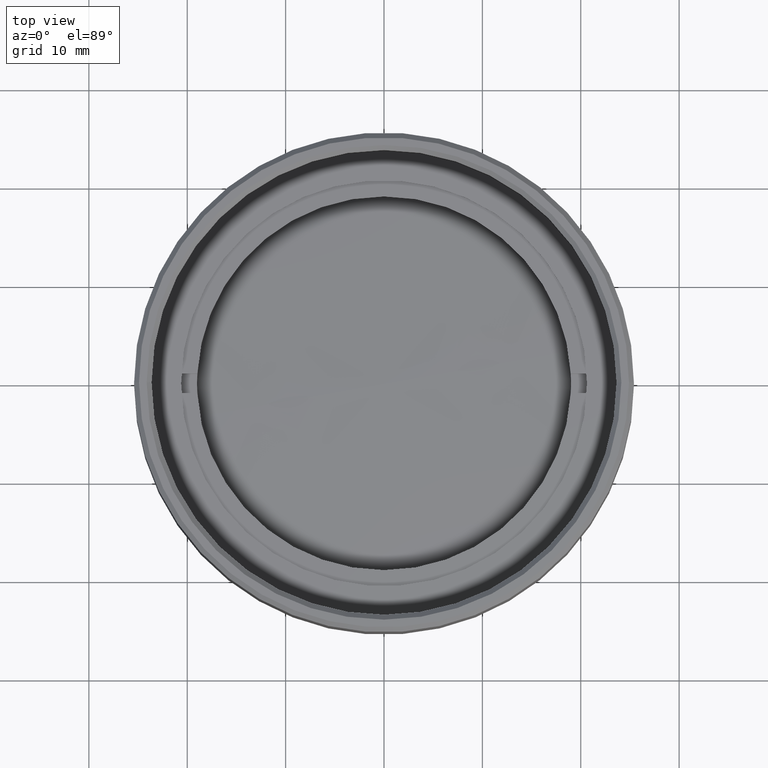
[diagram: clean part render]
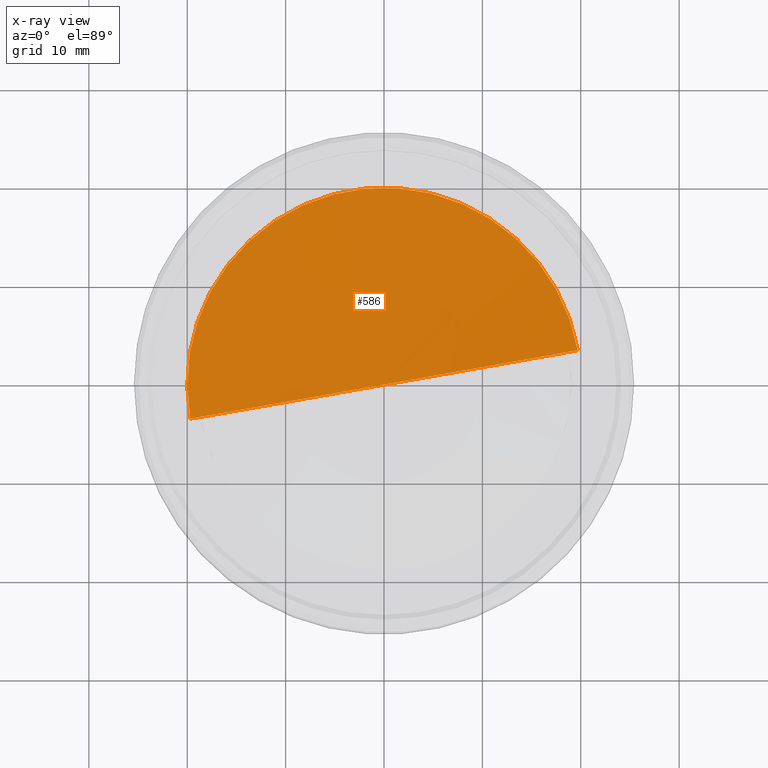
[diagram: x-ray — body ghosted, one internal face saturated and labeled with its STEP entity id]
A machine part, top view, then the same camera in x-ray: the body is ghosted and one INTERNAL B-rep face — a face not visible from any outside direction — is saturated and labeled: STEP entity #586.
In plain terms, the highlighted spherical surface has radius 224.08 mm.
Its self-contained STEP definition (entity closure, byte-faithful):
#73 = CARTESIAN_POINT ( 'NONE',  ( -20.00000000000000000, -2.449293598294699808E-15, -5.105676959790609537 ) ) ;
#222 = CARTESIAN_POINT ( 'NONE',  ( 20.00000000000000000, 0.000000000000000000, -5.105676959790609537 ) ) ;
#239 = AXIS2_PLACEMENT_3D ( 'NONE', #825, #1142, #369 ) ;
#315 = VERTEX_POINT ( 'NONE', #222 ) ;
#341 = DIRECTION ( 'NONE',  ( 1.224646799147351975E-16, -1.000000000000000000, -5.199167246561109658E-33 ) ) ;
#369 = DIRECTION ( 'NONE',  ( -1.000000000000000000, 0.000000000000000000, 4.336808689942017736E-17 ) ) ;
#401 = SPHERICAL_SURFACE ( 'NONE', #1007, 224.0800000000000125 ) ;
#515 = FACE_OUTER_BOUND ( 'NONE', #1796, .T. ) ;
#529 = DIRECTION ( 'NONE',  ( -0.000000000000000000, 0.000000000000000000, 1.000000000000000000 ) ) ;
#536 = AXIS2_PLACEMENT_3D ( 'NONE', #1130, #341, #663 ) ;
#552 = DIRECTION ( 'NONE',  ( 1.000000000000000000, 0.000000000000000000, 0.000000000000000000 ) ) ;
#586 = ADVANCED_FACE ( 'NONE', ( #515 ), #401, .T. ) ;
#648 = EDGE_CURVE ( 'NONE', #1171, #315, #1073, .T. ) ;
#663 = DIRECTION ( 'NONE',  ( 1.000000000000000000, 1.224646799147351975E-16, 0.000000000000000000 ) ) ;
#805 = ORIENTED_EDGE ( 'NONE', *, *, #976, .F. ) ;
#825 = CARTESIAN_POINT ( 'NONE',  ( -2.167585661379824986E-16, 0.000000000000000000, -5.105676959790609537 ) ) ;
#976 = EDGE_CURVE ( 'NONE', #1171, #315, #1296, .T. ) ;
#1007 = AXIS2_PLACEMENT_3D ( 'NONE', #1248, #529, #552 ) ;
#1012 = ORIENTED_EDGE ( 'NONE', *, *, #648, .T. ) ;
#1073 = CIRCLE ( 'NONE', #239, 20.00000000000000000 ) ;
#1130 = CARTESIAN_POINT ( 'NONE',  ( 0.000000000000000000, 0.000000000000000000, 218.0799999999999841 ) ) ;
#1142 = DIRECTION ( 'NONE',  ( -4.336808689942014655E-17, 0.000000000000000000, -1.000000000000000000 ) ) ;
#1171 = VERTEX_POINT ( 'NONE', #73 ) ;
#1248 = CARTESIAN_POINT ( 'NONE',  ( 0.000000000000000000, 0.000000000000000000, 218.0799999999999841 ) ) ;
#1296 = CIRCLE ( 'NONE', #536, 224.0800000000000125 ) ;
#1796 = EDGE_LOOP ( 'NONE', ( #805, #1012 ) ) ;